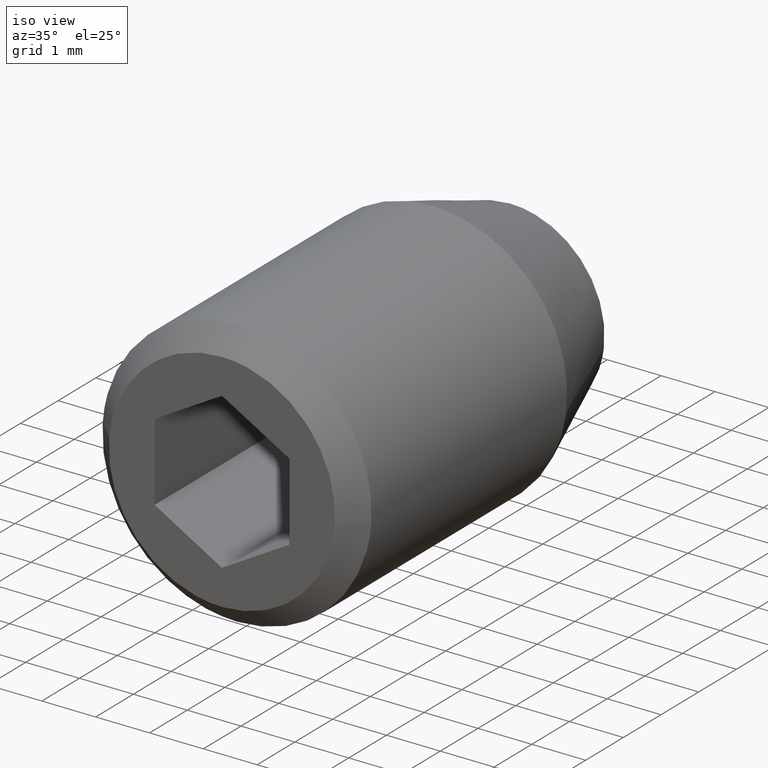
[diagram: clean part render]
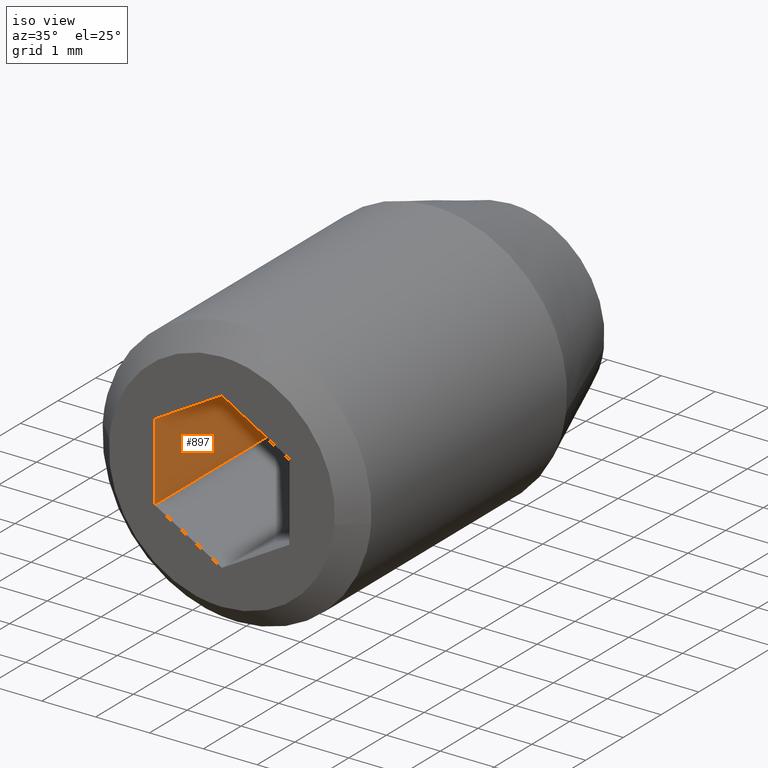
[diagram: same view with one face highlighted and labeled with its STEP entity id]
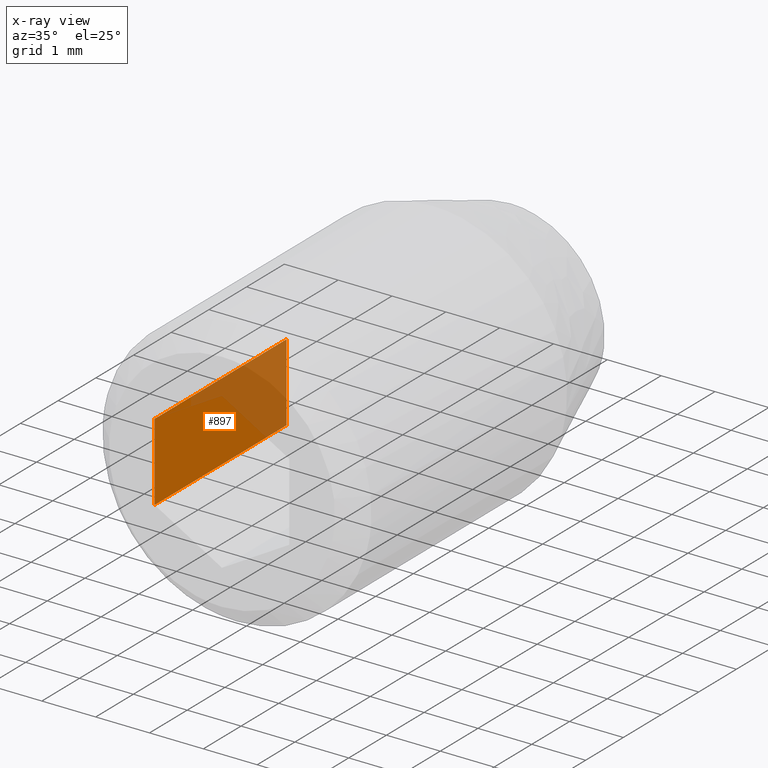
[diagram: x-ray of the same camera — body ghosted, the highlighted face saturated]
A machine part, iso view. The second image highlights one B-rep face of the part: STEP entity #897.
The next image is the same camera in x-ray: the body ghosted, the highlighted face saturated — about 39% of this face is hidden behind the body in this view.
In plain terms, the highlighted face is a freeform B-spline surface patch.
Its self-contained STEP definition (entity closure, byte-faithful):
#739=CARTESIAN_POINT('',(-1.250000000000000,-4.150000000000000,0.721688000000000));
#740=VERTEX_POINT('',#739);
#746=CARTESIAN_POINT('',(-1.250000000000000,-4.150000000000000,-0.721688000000000));
#747=VERTEX_POINT('',#746);
#748=CARTESIAN_POINT('',(-1.250000000000000,-4.150000000000000,0.721688000000000));
#749=CARTESIAN_POINT('',(-1.250000000000000,-4.150000000000000,-0.721688000000000));
#750=QUASI_UNIFORM_CURVE('',1,(#748,#749),.UNSPECIFIED.,.F.,.U.);
#751=EDGE_CURVE('',#740,#747,#750,.T.);
#859=CARTESIAN_POINT('',(-1.250000000000000,-7.650000000000000,-0.721688000000000));
#860=VERTEX_POINT('',#859);
#868=CARTESIAN_POINT('',(-1.250000000000000,-4.150000000000000,-0.721688000000000));
#869=CARTESIAN_POINT('',(-1.250000000000000,-7.650000000000000,-0.721688000000000));
#870=QUASI_UNIFORM_CURVE('',1,(#868,#869),.UNSPECIFIED.,.F.,.U.);
#871=EDGE_CURVE('',#747,#860,#870,.T.);
#876=CARTESIAN_POINT('',(-1.250000000000000,-7.824825079278350,-0.793784596146942));
#877=CARTESIAN_POINT('',(-1.250000000000000,-7.824825079278350,0.793784557432581));
#878=CARTESIAN_POINT('',(-1.250000000000000,-3.975175171061159,-0.793784596146942));
#879=CARTESIAN_POINT('',(-1.250000000000000,-3.975175171061159,0.793784557432581));
#880=B_SPLINE_SURFACE_WITH_KNOTS('',1,1,((#876,#878),(#877,#879)),.UNSPECIFIED.,.F.,.F.,.U.,(2,2),(2,2),(0.041708353571221,0.958291624077037),(0.0,3.849649908217191),.UNSPECIFIED.);
#881=CARTESIAN_POINT('',(-1.250000000000000,-7.650000000000000,0.721688000000000));
#882=VERTEX_POINT('',#881);
#883=CARTESIAN_POINT('',(-1.250000000000000,-7.650000000000000,0.721688000000000));
#884=CARTESIAN_POINT('',(-1.250000000000000,-7.650000000000000,-0.721688000000000));
#885=QUASI_UNIFORM_CURVE('',1,(#883,#884),.UNSPECIFIED.,.F.,.U.);
#886=EDGE_CURVE('',#882,#860,#885,.T.);
#887=ORIENTED_EDGE('',*,*,#886,.T.);
#888=ORIENTED_EDGE('',*,*,#871,.F.);
#889=ORIENTED_EDGE('',*,*,#751,.F.);
#890=CARTESIAN_POINT('',(-1.250000000000000,-4.150000000000000,0.721688000000000));
#891=CARTESIAN_POINT('',(-1.250000000000000,-7.650000000000000,0.721688000000000));
#892=QUASI_UNIFORM_CURVE('',1,(#890,#891),.UNSPECIFIED.,.F.,.U.);
#893=EDGE_CURVE('',#740,#882,#892,.T.);
#894=ORIENTED_EDGE('',*,*,#893,.T.);
#895=EDGE_LOOP('',(#887,#888,#889,#894));
#896=FACE_OUTER_BOUND('',#895,.T.);
#897=ADVANCED_FACE('',(#896),#880,.F.);